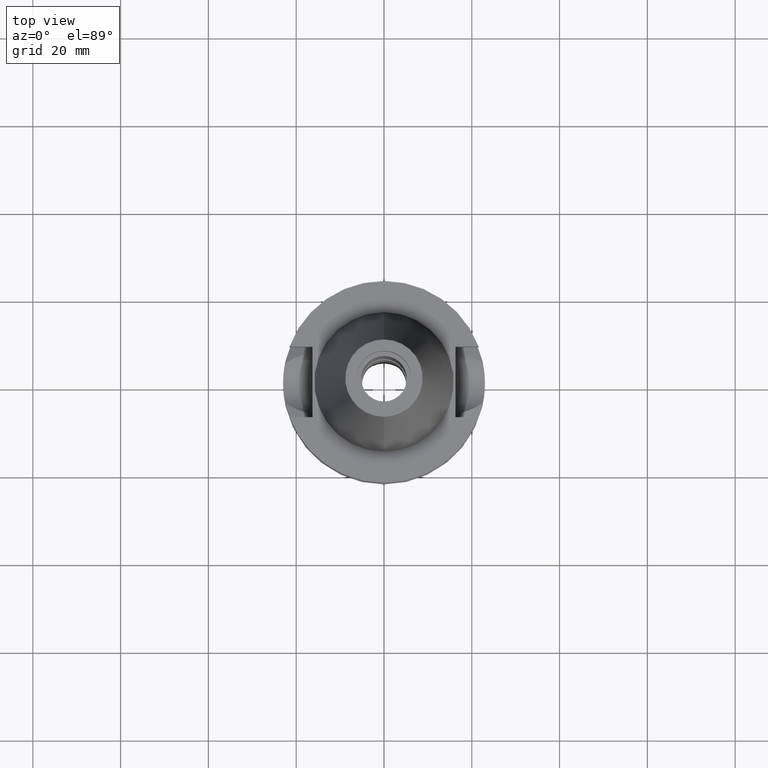
[diagram: clean part render]
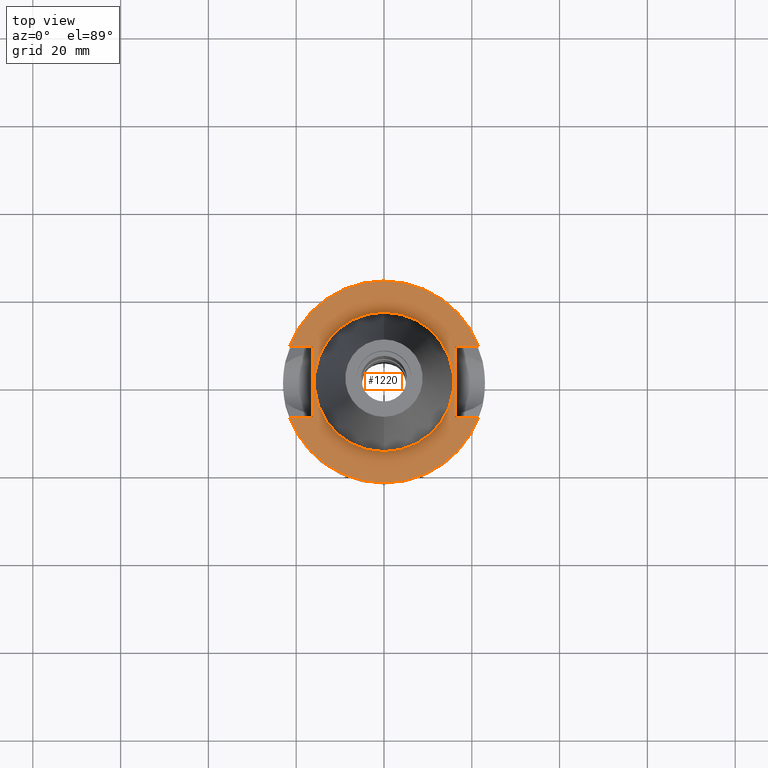
[diagram: same view with one face highlighted and labeled with its STEP entity id]
A machine part, top view. The second image highlights one B-rep face of the part: STEP entity #1220.
In plain terms, the highlighted planar face has unit normal (0, 0, -1).
Its self-contained STEP definition (entity closure, byte-faithful):
#94=DIRECTION('',(0.E0,1.E0,0.E0));
#95=VECTOR('',#94,1.61E1);
#96=CARTESIAN_POINT('',(-1.63E1,-8.05E0,-1.E0));
#97=LINE('',#96,#95);
#101=DIRECTION('',(-1.E0,9.347030801892E-14,0.E0));
#102=VECTOR('',#101,5.245243094473E0);
#103=CARTESIAN_POINT('',(-1.63E1,8.05E0,-1.E0));
#104=LINE('',#103,#102);
#108=CARTESIAN_POINT('',(0.E0,1.911306259429E-14,-1.E0));
#109=DIRECTION('',(0.E0,0.E0,-1.E0));
#110=DIRECTION('',(-9.367496997598E-1,3.5E-1,0.E0));
#111=AXIS2_PLACEMENT_3D('',#108,#109,#110);
#116=CARTESIAN_POINT('',(0.E0,1.911306259429E-14,-1.E0));
#117=DIRECTION('',(0.E0,0.E0,-1.E0));
#118=DIRECTION('',(0.E0,1.E0,0.E0));
#119=AXIS2_PLACEMENT_3D('',#116,#117,#118);
#124=DIRECTION('',(0.E0,-1.E0,0.E0));
#125=VECTOR('',#124,1.61E1);
#126=CARTESIAN_POINT('',(1.63E1,8.05E0,-1.E0));
#127=LINE('',#126,#125);
#131=DIRECTION('',(1.E0,-9.347030801892E-14,0.E0));
#132=VECTOR('',#131,5.245243094473E0);
#133=CARTESIAN_POINT('',(1.63E1,-8.05E0,-1.E0));
#134=LINE('',#133,#132);
#138=CARTESIAN_POINT('',(0.E0,1.911306259429E-14,-1.E0));
#139=DIRECTION('',(0.E0,0.E0,-1.E0));
#140=DIRECTION('',(9.367496997598E-1,-3.5E-1,0.E0));
#141=AXIS2_PLACEMENT_3D('',#138,#139,#140);
#146=CARTESIAN_POINT('',(0.E0,1.911306259429E-14,-1.E0));
#147=DIRECTION('',(0.E0,0.E0,-1.E0));
#148=DIRECTION('',(0.E0,-1.E0,0.E0));
#149=AXIS2_PLACEMENT_3D('',#146,#147,#148);
#154=CARTESIAN_POINT('',(0.E0,1.911306259429E-14,-9.999999999999E-1));
#155=DIRECTION('',(0.E0,0.E0,1.E0));
#156=DIRECTION('',(0.E0,-1.E0,0.E0));
#157=AXIS2_PLACEMENT_3D('',#154,#155,#156);
#162=CARTESIAN_POINT('',(0.E0,1.911306259429E-14,-9.999999999999E-1));
#163=DIRECTION('',(0.E0,0.E0,1.E0));
#164=DIRECTION('',(0.E0,1.E0,0.E0));
#165=AXIS2_PLACEMENT_3D('',#162,#163,#164);
#210=DIRECTION('',(-1.E0,-9.313164748262E-14,0.E0));
#211=VECTOR('',#210,5.245243094473E0);
#212=CARTESIAN_POINT('',(-1.63E1,-8.05E0,-1.E0));
#213=LINE('',#212,#211);
#333=DIRECTION('',(1.E0,9.380896855522E-14,0.E0));
#334=VECTOR('',#333,5.245243094473E0);
#335=CARTESIAN_POINT('',(1.63E1,8.05E0,-1.E0));
#336=LINE('',#335,#334);
#1087=CARTESIAN_POINT('',(-1.63E1,-8.05E0,-1.E0));
#1088=VERTEX_POINT('',#1087);
#1089=CARTESIAN_POINT('',(-2.154524309447E1,-8.05E0,-1.E0));
#1090=VERTEX_POINT('',#1089);
#1091=CARTESIAN_POINT('',(-1.63E1,8.05E0,-1.E0));
#1092=VERTEX_POINT('',#1091);
#1093=CARTESIAN_POINT('',(-2.154524309447E1,8.05E0,-1.E0));
#1094=VERTEX_POINT('',#1093);
#1095=CARTESIAN_POINT('',(0.E0,2.3E1,-1.E0));
#1096=CARTESIAN_POINT('',(2.154524309447E1,8.05E0,-1.E0));
#1097=VERTEX_POINT('',#1095);
#1098=VERTEX_POINT('',#1096);
#1099=CARTESIAN_POINT('',(1.63E1,8.05E0,-1.E0));
#1100=VERTEX_POINT('',#1099);
#1101=CARTESIAN_POINT('',(1.63E1,-8.05E0,-1.E0));
#1102=VERTEX_POINT('',#1101);
#1103=CARTESIAN_POINT('',(2.154524309447E1,-8.05E0,-1.E0));
#1104=VERTEX_POINT('',#1103);
#1105=CARTESIAN_POINT('',(0.E0,-2.3E1,-1.E0));
#1106=VERTEX_POINT('',#1105);
#1107=CARTESIAN_POINT('',(0.E0,-1.5875E1,-9.999999999999E-1));
#1108=CARTESIAN_POINT('',(0.E0,1.5875E1,-9.999999999999E-1));
#1109=VERTEX_POINT('',#1107);
#1110=VERTEX_POINT('',#1108);
#1189=CARTESIAN_POINT('',(0.E0,1.212400331156E-14,-1.E0));
#1190=DIRECTION('',(0.E0,0.E0,-1.E0));
#1191=DIRECTION('',(0.E0,-1.E0,0.E0));
#1192=AXIS2_PLACEMENT_3D('',#1189,#1190,#1191);
#1193=PLANE('',#1192);
#1195=ORIENTED_EDGE('',*,*,#1194,.T.);
#1197=ORIENTED_EDGE('',*,*,#1196,.T.);
#1199=ORIENTED_EDGE('',*,*,#1198,.T.);
#1201=ORIENTED_EDGE('',*,*,#1200,.T.);
#1203=ORIENTED_EDGE('',*,*,#1202,.F.);
#1205=ORIENTED_EDGE('',*,*,#1204,.T.);
#1207=ORIENTED_EDGE('',*,*,#1206,.T.);
#1209=ORIENTED_EDGE('',*,*,#1208,.T.);
#1211=ORIENTED_EDGE('',*,*,#1210,.T.);
#1213=ORIENTED_EDGE('',*,*,#1212,.F.);
#1214=EDGE_LOOP('',(#1195,#1197,#1199,#1201,#1203,#1205,#1207,#1209,#1211,
#1213));
#1215=FACE_OUTER_BOUND('',#1214,.F.);
#1216=ORIENTED_EDGE('',*,*,#1168,.T.);
#1217=ORIENTED_EDGE('',*,*,#1184,.T.);
#1218=EDGE_LOOP('',(#1216,#1217));
#1219=FACE_BOUND('',#1218,.F.);
#112=CIRCLE('',#111,2.3E1);
#120=CIRCLE('',#119,2.3E1);
#142=CIRCLE('',#141,2.3E1);
#150=CIRCLE('',#149,2.3E1);
#158=CIRCLE('',#157,1.5875E1);
#166=CIRCLE('',#165,1.5875E1);
#1168=EDGE_CURVE('',#1109,#1110,#158,.T.);
#1184=EDGE_CURVE('',#1110,#1109,#166,.T.);
#1194=EDGE_CURVE('',#1088,#1092,#97,.T.);
#1196=EDGE_CURVE('',#1092,#1094,#104,.T.);
#1198=EDGE_CURVE('',#1094,#1097,#112,.T.);
#1200=EDGE_CURVE('',#1097,#1098,#120,.T.);
#1202=EDGE_CURVE('',#1100,#1098,#336,.T.);
#1204=EDGE_CURVE('',#1100,#1102,#127,.T.);
#1206=EDGE_CURVE('',#1102,#1104,#134,.T.);
#1208=EDGE_CURVE('',#1104,#1106,#142,.T.);
#1210=EDGE_CURVE('',#1106,#1090,#150,.T.);
#1212=EDGE_CURVE('',#1088,#1090,#213,.T.);
#1220=ADVANCED_FACE('',(#1215,#1219),#1193,.F.);